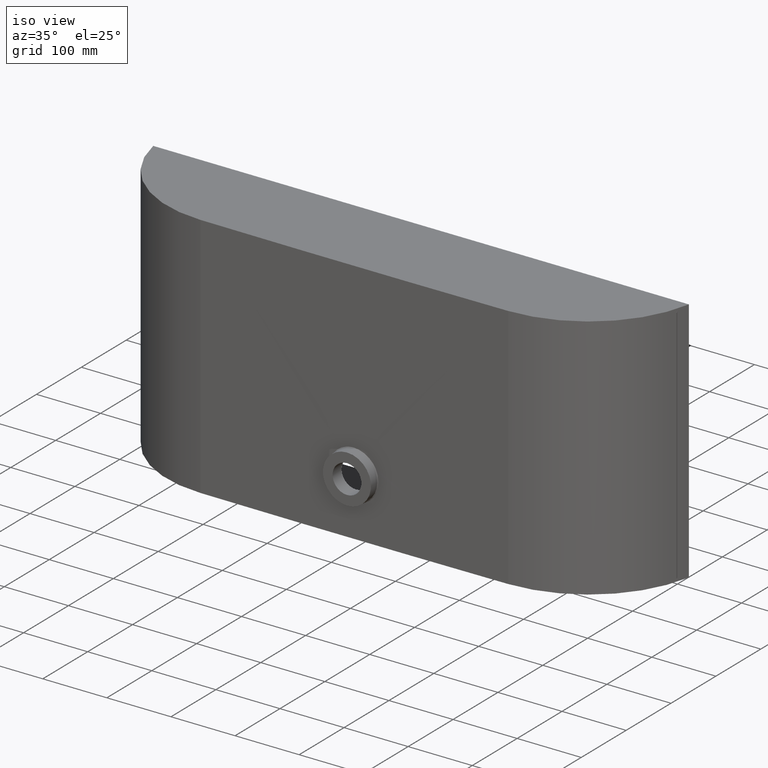
[diagram: clean part render]
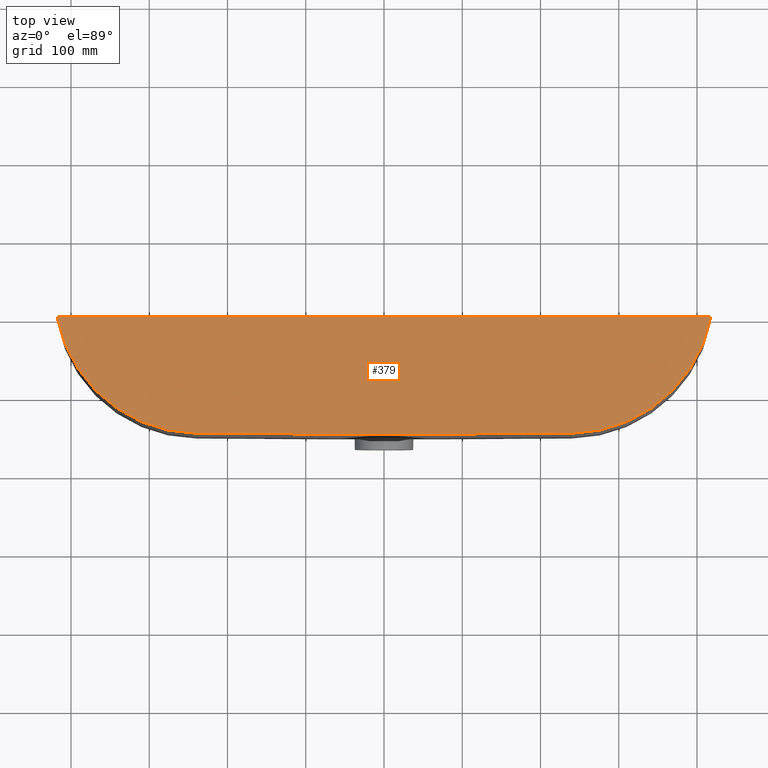
[diagram: tour spotlight — one face highlighted and labeled with its STEP entity id]
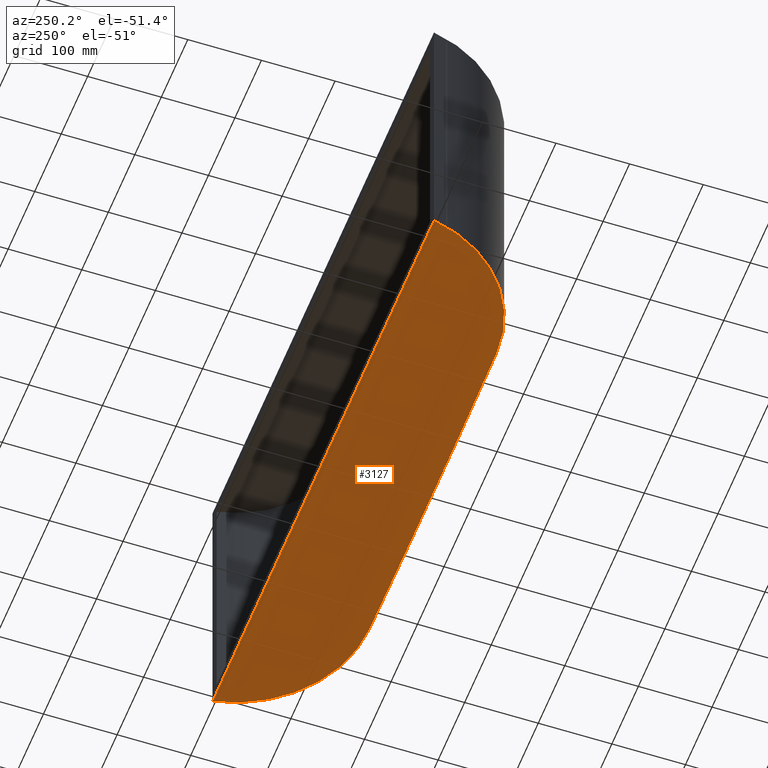
[diagram: tour spotlight — one face highlighted and labeled with its STEP entity id]
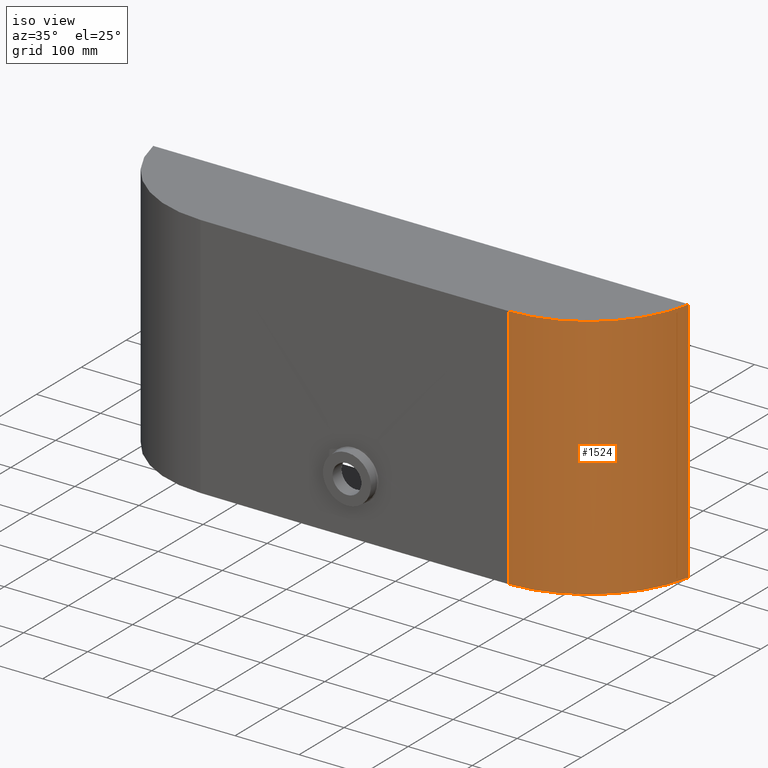
[diagram: tour spotlight — one face highlighted and labeled with its STEP entity id]
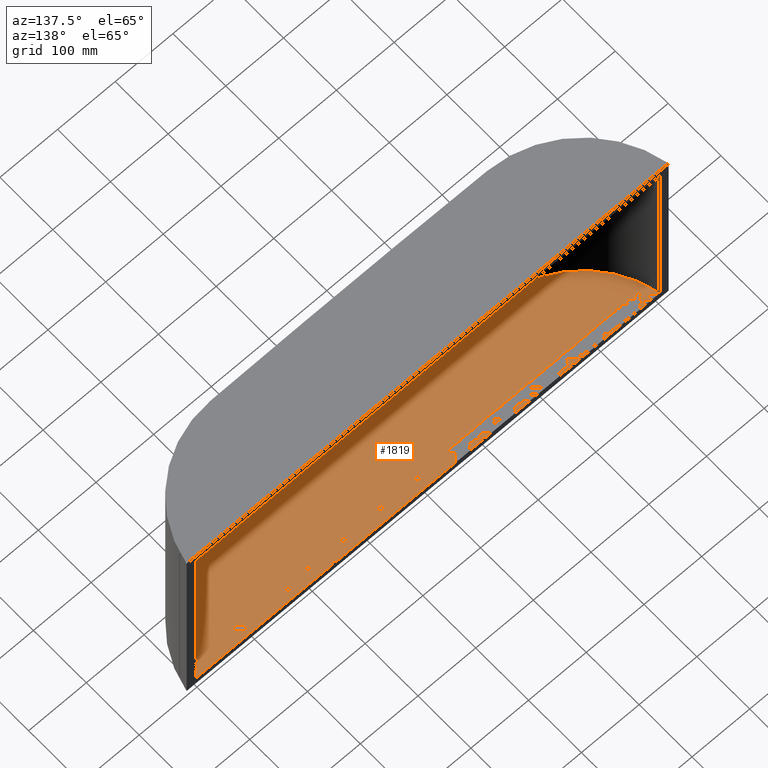
[diagram: tour spotlight — one face highlighted and labeled with its STEP entity id]
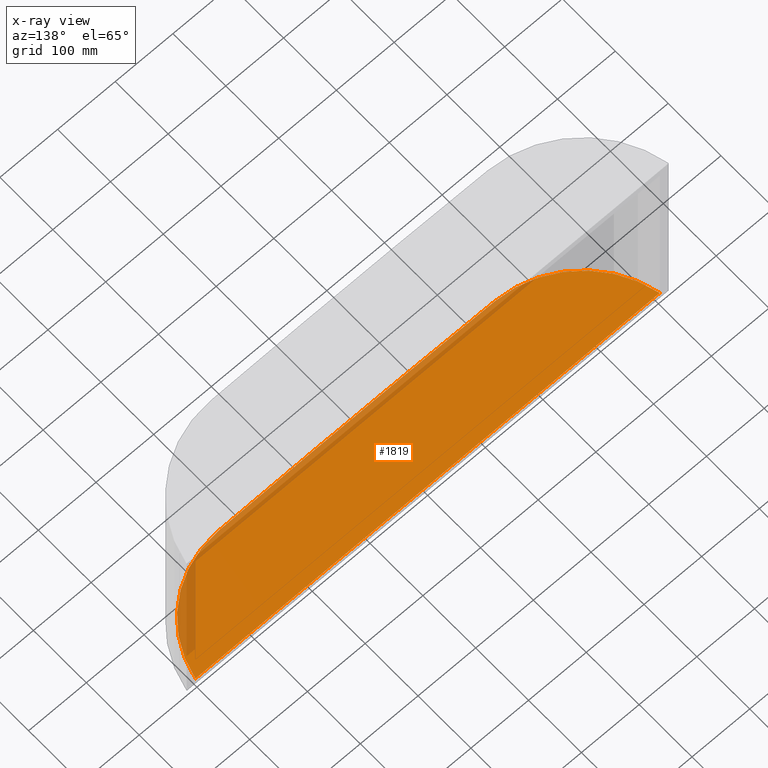
[diagram: x-ray of the same camera — body ghosted, this tour face saturated]
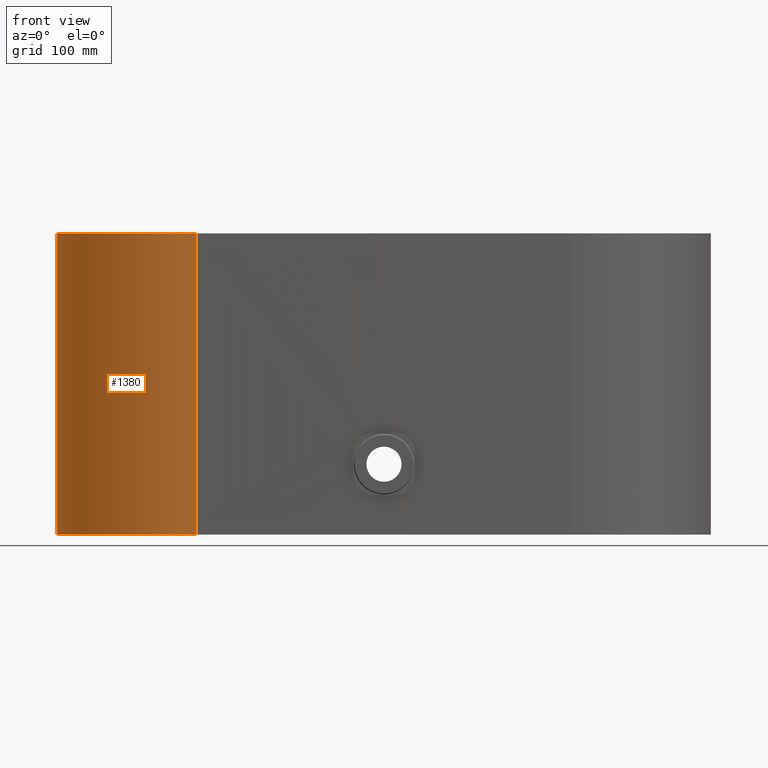
[diagram: tour spotlight — one face highlighted and labeled with its STEP entity id]
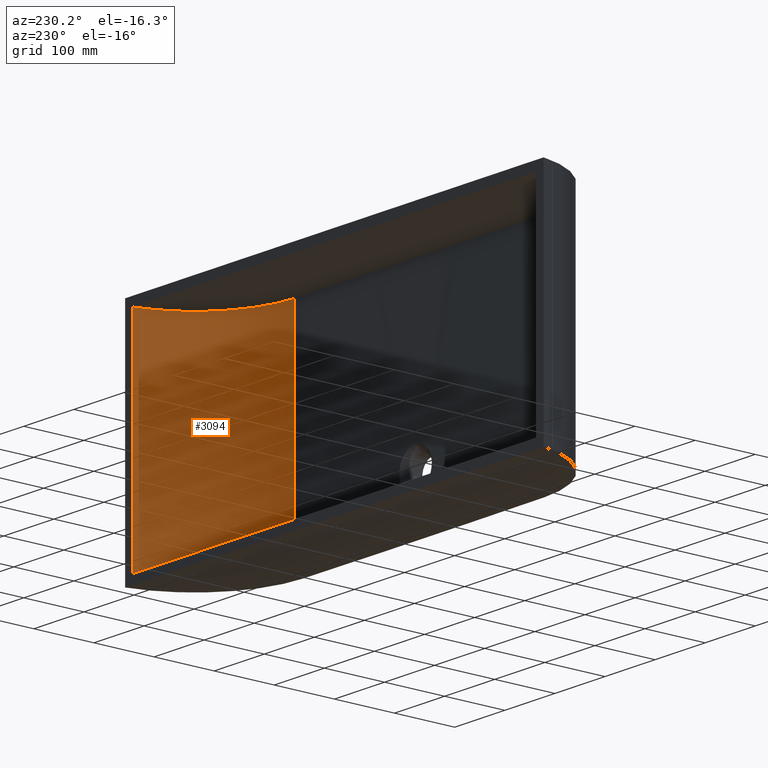
[diagram: tour spotlight — one face highlighted and labeled with its STEP entity id]
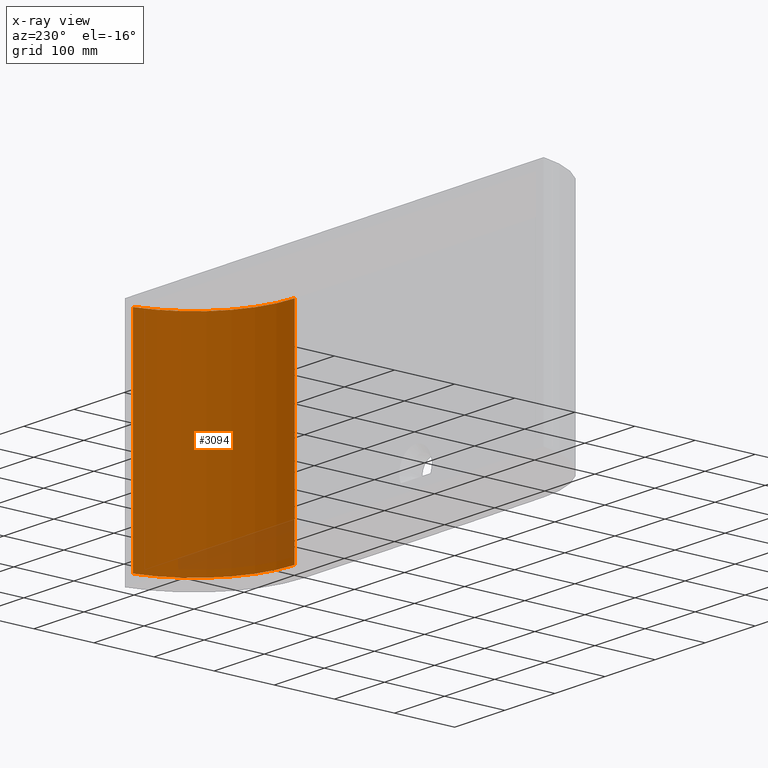
[diagram: x-ray of the same camera — body ghosted, this tour face saturated]
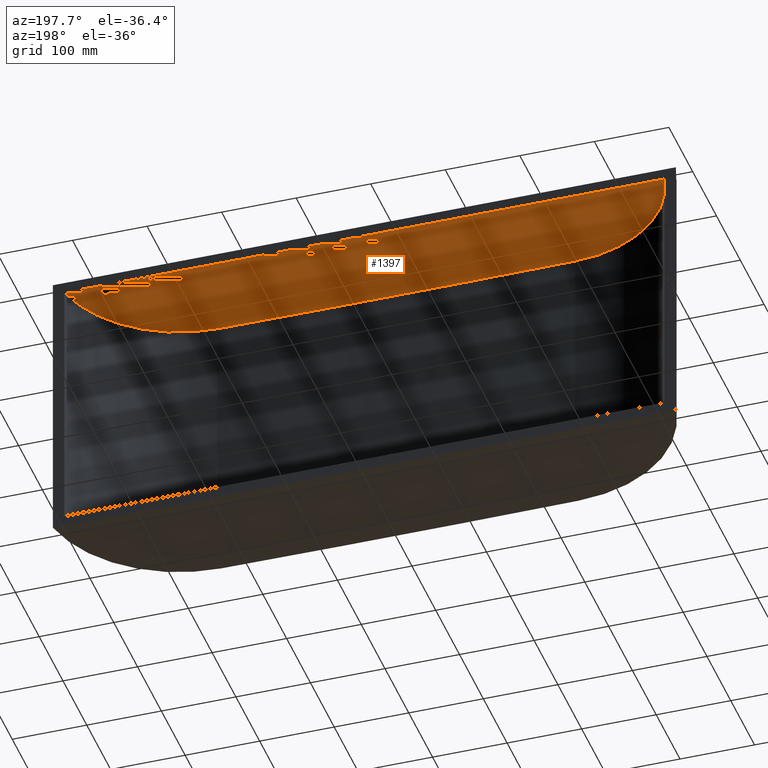
[diagram: tour spotlight — one face highlighted and labeled with its STEP entity id]
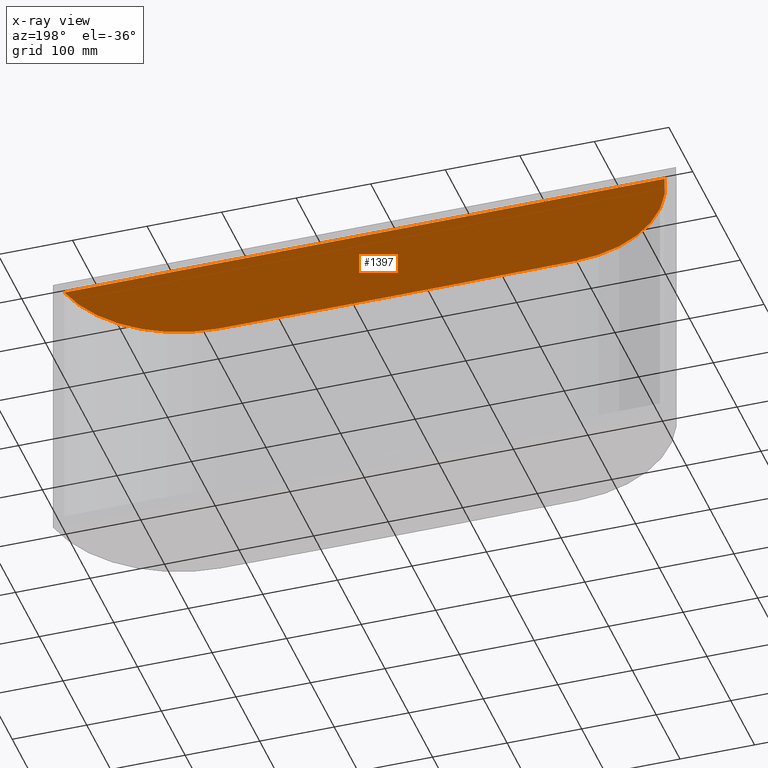
[diagram: x-ray of the same camera — body ghosted, this tour face saturated]
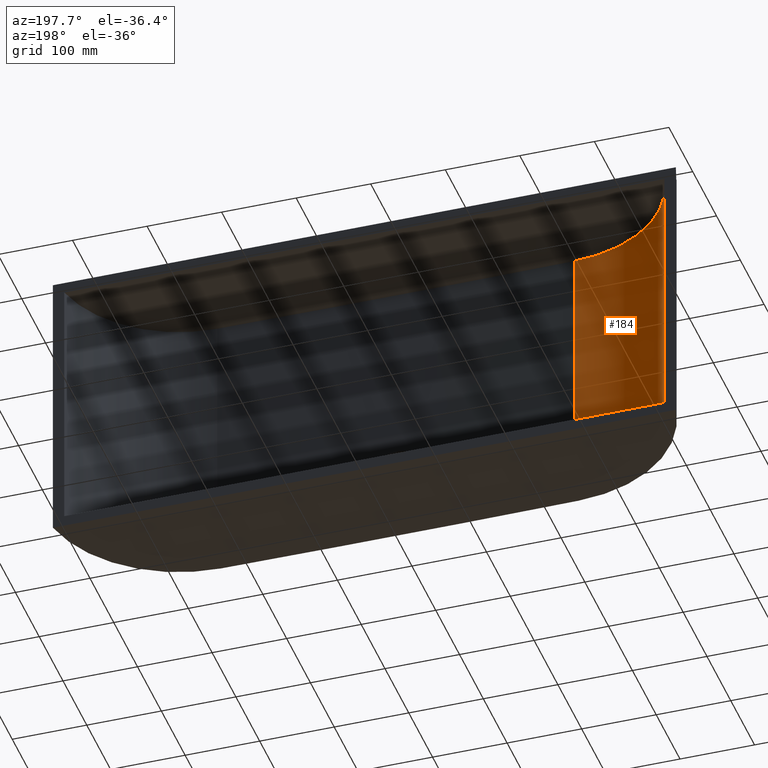
[diagram: tour spotlight — one face highlighted and labeled with its STEP entity id]
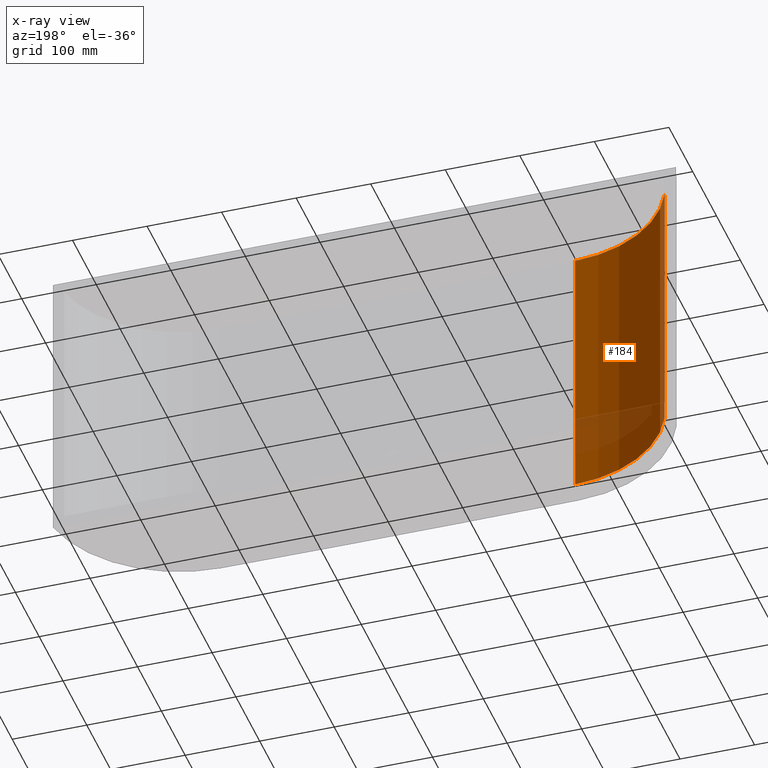
[diagram: x-ray of the same camera — body ghosted, this tour face saturated]
A machine part: a face-by-face anatomy tour. The part has 30 B-rep faces; the first image is the clean iso view, then the 8 largest visible faces are spotlighted one at a time (largest first), each with its STEP entity span.

Face 1 — top view, entity #379. In plain terms, the highlighted planar face has unit normal (0, 0, 1).
Definition (entity closure, byte-faithful):
#27 = LINE ( 'NONE', #1108, #2782 ) ;
#37 = DIRECTION ( 'NONE',  ( 0.0000000000000000000, 0.0000000000000000000, 1.000000000000000000 ) ) ;
#40 = EDGE_CURVE ( 'NONE', #2929, #260, #1393, .T. ) ;
#135 = VERTEX_POINT ( 'NONE', #2263 ) ;
#242 = AXIS2_PLACEMENT_3D ( 'NONE', #2932, #37, #285 ) ;
#253 = CIRCLE ( 'NONE', #1985, 23055.62499999943600 ) ;
#260 = VERTEX_POINT ( 'NONE', #1451 ) ;
#285 = DIRECTION ( 'NONE',  ( 1.000000000000000000, 0.0000000000000000000, 0.0000000000000000000 ) ) ;
#379 = ADVANCED_FACE ( 'NONE', ( #2138 ), #1620, .T. ) ;
#492 = AXIS2_PLACEMENT_3D ( 'NONE', #908, #2468, #561 ) ;
#561 = DIRECTION ( 'NONE',  ( 1.000000000000000000, 0.0000000000000000000, 0.0000000000000000000 ) ) ;
#799 = DIRECTION ( 'NONE',  ( 1.000000000000000000, 0.0000000000000000000, 0.0000000000000000000 ) ) ;
#908 = CARTESIAN_POINT ( 'NONE',  ( -238.2529469721367500, 33.96254106172236200, 295.0000000000000600 ) ) ;
#920 = EDGE_CURVE ( 'NONE', #1154, #135, #2953, .T. ) ;
#1011 = ORIENTED_EDGE ( 'NONE', *, *, #920, .T. ) ;
#1104 = CARTESIAN_POINT ( 'NONE',  ( -417.7905297708493900, -1.872549834113797300E-015, 295.0000000000000600 ) ) ;
#1107 = DIRECTION ( 'NONE',  ( -1.000000000000000000, -1.224646799147353200E-016, 0.0000000000000000000 ) ) ;
#1108 = CARTESIAN_POINT ( 'NONE',  ( -238.2529469721367500, 2.081668171172168500E-014, 295.0000000000000600 ) ) ;
#1114 = ORIENTED_EDGE ( 'NONE', *, *, #1257, .T. ) ;
#1154 = VERTEX_POINT ( 'NONE', #3133 ) ;
#1245 = ORIENTED_EDGE ( 'NONE', *, *, #2872, .T. ) ;
#1257 = EDGE_CURVE ( 'NONE', #260, #1154, #253, .T. ) ;
#1261 = DIRECTION ( 'NONE',  ( 0.0000000000000000000, 0.0000000000000000000, 1.000000000000000000 ) ) ;
#1263 = EDGE_LOOP ( 'NONE', ( #2048, #1114, #1011, #1245 ) ) ;
#1393 = CIRCLE ( 'NONE', #492, 182.7216402963091200 ) ;
#1451 = CARTESIAN_POINT ( 'NONE',  ( -240.1562457615723400, -148.7491862200585900, 295.0000000000000600 ) ) ;
#1620 = PLANE ( 'NONE',  #3042 ) ;
#1853 = CARTESIAN_POINT ( 'NONE',  ( -238.2529469721367500, 33.96254106172236200, 295.0000000000000600 ) ) ;
#1985 = AXIS2_PLACEMENT_3D ( 'NONE', #2311, #1261, #799 ) ;
#2048 = ORIENTED_EDGE ( 'NONE', *, *, #40, .T. ) ;
#2138 = FACE_OUTER_BOUND ( 'NONE', #1263, .T. ) ;
#2263 = CARTESIAN_POINT ( 'NONE',  ( 417.7905297708493900, 1.004566171654757300E-013, 295.0000000000000600 ) ) ;
#2311 = CARTESIAN_POINT ( 'NONE',  ( -2.793754109194857500E-012, 22905.62499999944000, 295.0000000000000600 ) ) ;
#2468 = DIRECTION ( 'NONE',  ( 0.0000000000000000000, 0.0000000000000000000, 1.000000000000000000 ) ) ;
#2774 = DIRECTION ( 'NONE',  ( 1.000000000000000000, 0.0000000000000000000, -0.0000000000000000000 ) ) ;
#2782 = VECTOR ( 'NONE', #1107, 1000.000000000000000 ) ;
#2872 = EDGE_CURVE ( 'NONE', #135, #2929, #27, .T. ) ;
#2929 = VERTEX_POINT ( 'NONE', #1104 ) ;
#2932 = CARTESIAN_POINT ( 'NONE',  ( 238.2529469721367500, 33.96254106172241900, 295.0000000000000600 ) ) ;
#2953 = CIRCLE ( 'NONE', #242, 182.7216402963090900 ) ;
#3042 = AXIS2_PLACEMENT_3D ( 'NONE', #1853, #3202, #2774 ) ;
#3133 = CARTESIAN_POINT ( 'NONE',  ( 240.1562457615603400, -148.7491862199910000, 295.0000000000000600 ) ) ;
#3202 = DIRECTION ( 'NONE',  ( 0.0000000000000000000, 0.0000000000000000000, 1.000000000000000000 ) ) ;

Face 2 — auxiliary view, entity #3127. In plain terms, the highlighted planar face has unit normal (0, 0, 1).
Definition (entity closure, byte-faithful):
#2 = DIRECTION ( 'NONE',  ( 0.0000000000000000000, 0.0000000000000000000, 1.000000000000000000 ) ) ;
#20 = VERTEX_POINT ( 'NONE', #3119 ) ;
#29 = EDGE_CURVE ( 'NONE', #20, #2840, #2372, .T. ) ;
#320 = EDGE_CURVE ( 'NONE', #2840, #1751, #506, .T. ) ;
#445 = AXIS2_PLACEMENT_3D ( 'NONE', #1023, #904, #931 ) ;
#487 = EDGE_CURVE ( 'NONE', #1751, #1307, #707, .T. ) ;
#506 = CIRCLE ( 'NONE', #1892, 182.7216402963091200 ) ;
#525 = DIRECTION ( 'NONE',  ( 1.000000000000000000, 0.0000000000000000000, 0.0000000000000000000 ) ) ;
#538 = CIRCLE ( 'NONE', #3168, 182.7216402963090900 ) ;
#673 = CARTESIAN_POINT ( 'NONE',  ( -2.793754109194857500E-012, 22905.62499999944000, -90.00000000000000000 ) ) ;
#707 = CIRCLE ( 'NONE', #746, 23055.62499999943600 ) ;
#742 = ORIENTED_EDGE ( 'NONE', *, *, #2787, .F. ) ;
#746 = AXIS2_PLACEMENT_3D ( 'NONE', #673, #977, #3064 ) ;
#904 = DIRECTION ( 'NONE',  ( 0.0000000000000000000, 0.0000000000000000000, 1.000000000000000000 ) ) ;
#931 = DIRECTION ( 'NONE',  ( 1.000000000000000000, 0.0000000000000000000, -0.0000000000000000000 ) ) ;
#977 = DIRECTION ( 'NONE',  ( 0.0000000000000000000, 0.0000000000000000000, 1.000000000000000000 ) ) ;
#1023 = CARTESIAN_POINT ( 'NONE',  ( -238.2529469721367500, 33.96254106172236200, -90.00000000000000000 ) ) ;
#1035 = PLANE ( 'NONE',  #445 ) ;
#1305 = CARTESIAN_POINT ( 'NONE',  ( -417.7905297708493900, -1.872549834113797300E-015, -90.00000000000000000 ) ) ;
#1307 = VERTEX_POINT ( 'NONE', #3165 ) ;
#1309 = DIRECTION ( 'NONE',  ( 1.000000000000000000, 0.0000000000000000000, 0.0000000000000000000 ) ) ;
#1313 = DIRECTION ( 'NONE',  ( 0.0000000000000000000, 0.0000000000000000000, 1.000000000000000000 ) ) ;
#1314 = CARTESIAN_POINT ( 'NONE',  ( 238.2529469721367500, 33.96254106172241900, -90.00000000000000000 ) ) ;
#1359 = VECTOR ( 'NONE', #2342, 1000.000000000000000 ) ;
#1385 = ORIENTED_EDGE ( 'NONE', *, *, #29, .F. ) ;
#1711 = CARTESIAN_POINT ( 'NONE',  ( -240.1562457615723400, -148.7491862200585900, -90.00000000000000000 ) ) ;
#1751 = VERTEX_POINT ( 'NONE', #1711 ) ;
#1890 = EDGE_LOOP ( 'NONE', ( #2049, #1385, #742, #2719 ) ) ;
#1892 = AXIS2_PLACEMENT_3D ( 'NONE', #2996, #2, #525 ) ;
#2049 = ORIENTED_EDGE ( 'NONE', *, *, #320, .F. ) ;
#2314 = FACE_OUTER_BOUND ( 'NONE', #1890, .T. ) ;
#2342 = DIRECTION ( 'NONE',  ( -1.000000000000000000, -1.224646799147353200E-016, 0.0000000000000000000 ) ) ;
#2372 = LINE ( 'NONE', #3224, #1359 ) ;
#2719 = ORIENTED_EDGE ( 'NONE', *, *, #487, .F. ) ;
#2787 = EDGE_CURVE ( 'NONE', #1307, #20, #538, .T. ) ;
#2840 = VERTEX_POINT ( 'NONE', #1305 ) ;
#2996 = CARTESIAN_POINT ( 'NONE',  ( -238.2529469721367500, 33.96254106172236200, -90.00000000000000000 ) ) ;
#3064 = DIRECTION ( 'NONE',  ( 1.000000000000000000, 0.0000000000000000000, 0.0000000000000000000 ) ) ;
#3119 = CARTESIAN_POINT ( 'NONE',  ( 417.7905297708493900, 1.004566171654757300E-013, -90.00000000000000000 ) ) ;
#3127 = ADVANCED_FACE ( 'NONE', ( #2314 ), #1035, .F. ) ;
#3165 = CARTESIAN_POINT ( 'NONE',  ( 240.1562457615603400, -148.7491862199910000, -90.00000000000000000 ) ) ;
#3168 = AXIS2_PLACEMENT_3D ( 'NONE', #1314, #1313, #1309 ) ;
#3224 = CARTESIAN_POINT ( 'NONE',  ( -238.2529469721367500, 2.081668171172168500E-014, -90.00000000000000000 ) ) ;

Face 3 — iso view, entity #1524. In plain terms, the highlighted cylindrical surface (partial cylindrical patch) has radius 182.722 mm, axis along (0, 0, 1).
Definition (entity closure, byte-faithful):
#20 = VERTEX_POINT ( 'NONE', #3119 ) ;
#37 = DIRECTION ( 'NONE',  ( 0.0000000000000000000, 0.0000000000000000000, 1.000000000000000000 ) ) ;
#101 = DIRECTION ( 'NONE',  ( 0.0000000000000000000, 0.0000000000000000000, 1.000000000000000000 ) ) ;
#135 = VERTEX_POINT ( 'NONE', #2263 ) ;
#194 = EDGE_CURVE ( 'NONE', #20, #135, #2393, .T. ) ;
#242 = AXIS2_PLACEMENT_3D ( 'NONE', #2932, #37, #285 ) ;
#285 = DIRECTION ( 'NONE',  ( 1.000000000000000000, 0.0000000000000000000, 0.0000000000000000000 ) ) ;
#378 = DIRECTION ( 'NONE',  ( 1.000000000000000000, 0.0000000000000000000, 0.0000000000000000000 ) ) ;
#512 = EDGE_LOOP ( 'NONE', ( #2679, #1288, #590, #2338 ) ) ;
#538 = CIRCLE ( 'NONE', #3168, 182.7216402963090900 ) ;
#590 = ORIENTED_EDGE ( 'NONE', *, *, #1141, .F. ) ;
#638 = VECTOR ( 'NONE', #101, 1000.000000000000000 ) ;
#713 = AXIS2_PLACEMENT_3D ( 'NONE', #1703, #1371, #378 ) ;
#788 = CARTESIAN_POINT ( 'NONE',  ( 240.1562457615603400, -148.7491862199910000, -75.00000000000000000 ) ) ;
#920 = EDGE_CURVE ( 'NONE', #1154, #135, #2953, .T. ) ;
#944 = FACE_OUTER_BOUND ( 'NONE', #512, .T. ) ;
#1141 = EDGE_CURVE ( 'NONE', #1307, #1154, #1644, .T. ) ;
#1154 = VERTEX_POINT ( 'NONE', #3133 ) ;
#1288 = ORIENTED_EDGE ( 'NONE', *, *, #920, .F. ) ;
#1307 = VERTEX_POINT ( 'NONE', #3165 ) ;
#1309 = DIRECTION ( 'NONE',  ( 1.000000000000000000, 0.0000000000000000000, 0.0000000000000000000 ) ) ;
#1313 = DIRECTION ( 'NONE',  ( 0.0000000000000000000, 0.0000000000000000000, 1.000000000000000000 ) ) ;
#1314 = CARTESIAN_POINT ( 'NONE',  ( 238.2529469721367500, 33.96254106172241900, -90.00000000000000000 ) ) ;
#1371 = DIRECTION ( 'NONE',  ( 0.0000000000000000000, 0.0000000000000000000, 1.000000000000000000 ) ) ;
#1524 = ADVANCED_FACE ( 'NONE', ( #944 ), #2785, .T. ) ;
#1644 = LINE ( 'NONE', #788, #638 ) ;
#1703 = CARTESIAN_POINT ( 'NONE',  ( 238.2529469721367500, 33.96254106172241900, -75.00000000000000000 ) ) ;
#1770 = VECTOR ( 'NONE', #3233, 1000.000000000000000 ) ;
#2263 = CARTESIAN_POINT ( 'NONE',  ( 417.7905297708493900, 1.004566171654757300E-013, 295.0000000000000600 ) ) ;
#2338 = ORIENTED_EDGE ( 'NONE', *, *, #2787, .T. ) ;
#2393 = LINE ( 'NONE', #3246, #1770 ) ;
#2679 = ORIENTED_EDGE ( 'NONE', *, *, #194, .T. ) ;
#2785 = CYLINDRICAL_SURFACE ( 'NONE', #713, 182.7216402963090900 ) ;
#2787 = EDGE_CURVE ( 'NONE', #1307, #20, #538, .T. ) ;
#2932 = CARTESIAN_POINT ( 'NONE',  ( 238.2529469721367500, 33.96254106172241900, 295.0000000000000600 ) ) ;
#2953 = CIRCLE ( 'NONE', #242, 182.7216402963090900 ) ;
#3119 = CARTESIAN_POINT ( 'NONE',  ( 417.7905297708493900, 1.004566171654757300E-013, -90.00000000000000000 ) ) ;
#3133 = CARTESIAN_POINT ( 'NONE',  ( 240.1562457615603400, -148.7491862199910000, 295.0000000000000600 ) ) ;
#3165 = CARTESIAN_POINT ( 'NONE',  ( 240.1562457615603400, -148.7491862199910000, -90.00000000000000000 ) ) ;
#3168 = AXIS2_PLACEMENT_3D ( 'NONE', #1314, #1313, #1309 ) ;
#3233 = DIRECTION ( 'NONE',  ( 0.0000000000000000000, 0.0000000000000000000, 1.000000000000000000 ) ) ;
#3246 = CARTESIAN_POINT ( 'NONE',  ( 417.7905297708493900, 1.004566171654757300E-013, -90.00000000000000000 ) ) ;

Face 4 — auxiliary view, entity #1819. An x-ray twin of the same camera follows (body ghosted, this face saturated) — the face is partly hidden behind the body. In plain terms, the highlighted planar face has unit normal (0, 0, 1).
Definition (entity closure, byte-faithful):
#84 = LINE ( 'NONE', #2781, #664 ) ;
#96 = EDGE_LOOP ( 'NONE', ( #622, #2847, #980, #2882 ) ) ;
#148 = AXIS2_PLACEMENT_3D ( 'NONE', #1721, #3069, #533 ) ;
#178 = AXIS2_PLACEMENT_3D ( 'NONE', #1301, #1022, #1153 ) ;
#278 = PLANE ( 'NONE',  #148 ) ;
#527 = VERTEX_POINT ( 'NONE', #2531 ) ;
#533 = DIRECTION ( 'NONE',  ( 1.000000000000000000, 0.0000000000000000000, -0.0000000000000000000 ) ) ;
#622 = ORIENTED_EDGE ( 'NONE', *, *, #2317, .T. ) ;
#664 = VECTOR ( 'NONE', #1460, 1000.000000000000000 ) ;
#822 = CIRCLE ( 'NONE', #1847, 167.7216402963090900 ) ;
#826 = VERTEX_POINT ( 'NONE', #2508 ) ;
#933 = EDGE_CURVE ( 'NONE', #1458, #3179, #981, .T. ) ;
#980 = ORIENTED_EDGE ( 'NONE', *, *, #933, .T. ) ;
#981 = CIRCLE ( 'NONE', #3250, 167.7216402963090900 ) ;
#1012 = CARTESIAN_POINT ( 'NONE',  ( 402.5000000000000000, 9.858406733136193300E-014, -75.00000000000000000 ) ) ;
#1022 = DIRECTION ( 'NONE',  ( 0.0000000000000000000, 0.0000000000000000000, 1.000000000000000000 ) ) ;
#1153 = DIRECTION ( 'NONE',  ( 1.000000000000000000, 0.0000000000000000000, 0.0000000000000000000 ) ) ;
#1198 = CIRCLE ( 'NONE', #178, 23040.62499999943600 ) ;
#1210 = DIRECTION ( 'NONE',  ( -1.000000000000000000, 0.0000000000000000000, 0.0000000000000000000 ) ) ;
#1264 = DIRECTION ( 'NONE',  ( 0.0000000000000000000, 0.0000000000000000000, 1.000000000000000000 ) ) ;
#1277 = DIRECTION ( 'NONE',  ( 1.000000000000000000, 0.0000000000000000000, 0.0000000000000000000 ) ) ;
#1280 = CARTESIAN_POINT ( 'NONE',  ( -238.2529469721367500, 33.96254106172236200, -75.00000000000000000 ) ) ;
#1301 = CARTESIAN_POINT ( 'NONE',  ( -2.793754109194857500E-012, 22905.62499999944000, -75.00000000000000000 ) ) ;
#1458 = VERTEX_POINT ( 'NONE', #1889 ) ;
#1460 = DIRECTION ( 'NONE',  ( -1.000000000000000000, -1.224646799147353200E-016, -0.0000000000000000000 ) ) ;
#1476 = DIRECTION ( 'NONE',  ( 0.0000000000000000000, 0.0000000000000000000, 1.000000000000000000 ) ) ;
#1721 = CARTESIAN_POINT ( 'NONE',  ( -238.2529469721367500, 33.96254106172236200, -75.00000000000000000 ) ) ;
#1780 = EDGE_CURVE ( 'NONE', #3179, #527, #84, .T. ) ;
#1819 = ADVANCED_FACE ( 'NONE', ( #3081 ), #278, .T. ) ;
#1847 = AXIS2_PLACEMENT_3D ( 'NONE', #1280, #1264, #1277 ) ;
#1889 = CARTESIAN_POINT ( 'NONE',  ( 240.0000000000007100, -133.7500000000667600, -75.00000000000000000 ) ) ;
#2317 = EDGE_CURVE ( 'NONE', #527, #826, #822, .T. ) ;
#2508 = CARTESIAN_POINT ( 'NONE',  ( -240.0000000000119700, -133.7499999999991500, -75.00000000000000000 ) ) ;
#2519 = CARTESIAN_POINT ( 'NONE',  ( 238.2529469721367500, 33.96254106172241900, -75.00000000000000000 ) ) ;
#2531 = CARTESIAN_POINT ( 'NONE',  ( -402.5000000000000000, 0.0000000000000000000, -75.00000000000000000 ) ) ;
#2781 = CARTESIAN_POINT ( 'NONE',  ( -402.5000000000000000, 0.0000000000000000000, -75.00000000000000000 ) ) ;
#2804 = EDGE_CURVE ( 'NONE', #826, #1458, #1198, .T. ) ;
#2847 = ORIENTED_EDGE ( 'NONE', *, *, #2804, .T. ) ;
#2882 = ORIENTED_EDGE ( 'NONE', *, *, #1780, .T. ) ;
#3069 = DIRECTION ( 'NONE',  ( 0.0000000000000000000, 0.0000000000000000000, 1.000000000000000000 ) ) ;
#3081 = FACE_OUTER_BOUND ( 'NONE', #96, .T. ) ;
#3179 = VERTEX_POINT ( 'NONE', #1012 ) ;
#3250 = AXIS2_PLACEMENT_3D ( 'NONE', #2519, #1476, #1210 ) ;

Face 5 — front view, entity #1380. In plain terms, the highlighted cylindrical surface (partial cylindrical patch) has radius 182.722 mm, axis along (0, 0, 1).
Definition (entity closure, byte-faithful):
#2 = DIRECTION ( 'NONE',  ( 0.0000000000000000000, 0.0000000000000000000, 1.000000000000000000 ) ) ;
#40 = EDGE_CURVE ( 'NONE', #2929, #260, #1393, .T. ) ;
#260 = VERTEX_POINT ( 'NONE', #1451 ) ;
#320 = EDGE_CURVE ( 'NONE', #2840, #1751, #506, .T. ) ;
#492 = AXIS2_PLACEMENT_3D ( 'NONE', #908, #2468, #561 ) ;
#506 = CIRCLE ( 'NONE', #1892, 182.7216402963091200 ) ;
#521 = ORIENTED_EDGE ( 'NONE', *, *, #633, .F. ) ;
#523 = VECTOR ( 'NONE', #3256, 1000.000000000000000 ) ;
#525 = DIRECTION ( 'NONE',  ( 1.000000000000000000, 0.0000000000000000000, 0.0000000000000000000 ) ) ;
#561 = DIRECTION ( 'NONE',  ( 1.000000000000000000, 0.0000000000000000000, 0.0000000000000000000 ) ) ;
#601 = ORIENTED_EDGE ( 'NONE', *, *, #40, .F. ) ;
#604 = DIRECTION ( 'NONE',  ( 0.0000000000000000000, 0.0000000000000000000, 1.000000000000000000 ) ) ;
#633 = EDGE_CURVE ( 'NONE', #2840, #2929, #1289, .T. ) ;
#887 = CYLINDRICAL_SURFACE ( 'NONE', #2490, 182.7216402963091200 ) ;
#908 = CARTESIAN_POINT ( 'NONE',  ( -238.2529469721367500, 33.96254106172236200, 295.0000000000000600 ) ) ;
#930 = LINE ( 'NONE', #1924, #2873 ) ;
#1104 = CARTESIAN_POINT ( 'NONE',  ( -417.7905297708493900, -1.872549834113797300E-015, 295.0000000000000600 ) ) ;
#1149 = DIRECTION ( 'NONE',  ( 0.0000000000000000000, 0.0000000000000000000, 1.000000000000000000 ) ) ;
#1172 = ORIENTED_EDGE ( 'NONE', *, *, #2283, .T. ) ;
#1289 = LINE ( 'NONE', #2732, #523 ) ;
#1305 = CARTESIAN_POINT ( 'NONE',  ( -417.7905297708493900, -1.872549834113797300E-015, -90.00000000000000000 ) ) ;
#1380 = ADVANCED_FACE ( 'NONE', ( #1876 ), #887, .T. ) ;
#1393 = CIRCLE ( 'NONE', #492, 182.7216402963091200 ) ;
#1451 = CARTESIAN_POINT ( 'NONE',  ( -240.1562457615723400, -148.7491862200585900, 295.0000000000000600 ) ) ;
#1711 = CARTESIAN_POINT ( 'NONE',  ( -240.1562457615723400, -148.7491862200585900, -90.00000000000000000 ) ) ;
#1751 = VERTEX_POINT ( 'NONE', #1711 ) ;
#1876 = FACE_OUTER_BOUND ( 'NONE', #2757, .T. ) ;
#1892 = AXIS2_PLACEMENT_3D ( 'NONE', #2996, #2, #525 ) ;
#1924 = CARTESIAN_POINT ( 'NONE',  ( -240.1562457615723400, -148.7491862200585900, -75.00000000000000000 ) ) ;
#2283 = EDGE_CURVE ( 'NONE', #1751, #260, #930, .T. ) ;
#2347 = DIRECTION ( 'NONE',  ( 1.000000000000000000, 0.0000000000000000000, 0.0000000000000000000 ) ) ;
#2468 = DIRECTION ( 'NONE',  ( 0.0000000000000000000, 0.0000000000000000000, 1.000000000000000000 ) ) ;
#2490 = AXIS2_PLACEMENT_3D ( 'NONE', #3154, #604, #2347 ) ;
#2710 = ORIENTED_EDGE ( 'NONE', *, *, #320, .T. ) ;
#2732 = CARTESIAN_POINT ( 'NONE',  ( -417.7905297708493900, -1.872549834113797300E-015, -90.00000000000000000 ) ) ;
#2757 = EDGE_LOOP ( 'NONE', ( #1172, #601, #521, #2710 ) ) ;
#2840 = VERTEX_POINT ( 'NONE', #1305 ) ;
#2873 = VECTOR ( 'NONE', #1149, 1000.000000000000000 ) ;
#2929 = VERTEX_POINT ( 'NONE', #1104 ) ;
#2996 = CARTESIAN_POINT ( 'NONE',  ( -238.2529469721367500, 33.96254106172236200, -90.00000000000000000 ) ) ;
#3154 = CARTESIAN_POINT ( 'NONE',  ( -238.2529469721367500, 33.96254106172236200, -75.00000000000000000 ) ) ;
#3256 = DIRECTION ( 'NONE',  ( 0.0000000000000000000, 0.0000000000000000000, 1.000000000000000000 ) ) ;

Face 6 — auxiliary view, entity #3094. An x-ray twin of the same camera follows (body ghosted, this face saturated) — the face is partly hidden behind the body. In plain terms, the highlighted cylindrical surface (partial cylindrical patch) has radius 167.722 mm, axis along (0, 0, 1).
Definition (entity closure, byte-faithful):
#70 = VECTOR ( 'NONE', #1019, 1000.000000000000000 ) ;
#181 = LINE ( 'NONE', #1015, #70 ) ;
#190 = VERTEX_POINT ( 'NONE', #1934 ) ;
#203 = AXIS2_PLACEMENT_3D ( 'NONE', #1052, #1090, #1047 ) ;
#366 = VERTEX_POINT ( 'NONE', #1120 ) ;
#393 = ORIENTED_EDGE ( 'NONE', *, *, #3170, .F. ) ;
#495 = ORIENTED_EDGE ( 'NONE', *, *, #933, .F. ) ;
#860 = CARTESIAN_POINT ( 'NONE',  ( 238.2529469721367500, 33.96254106172241900, 280.0000000000000000 ) ) ;
#872 = DIRECTION ( 'NONE',  ( 0.0000000000000000000, 0.0000000000000000000, 1.000000000000000000 ) ) ;
#893 = DIRECTION ( 'NONE',  ( -1.000000000000000000, 0.0000000000000000000, 0.0000000000000000000 ) ) ;
#933 = EDGE_CURVE ( 'NONE', #1458, #3179, #981, .T. ) ;
#969 = ORIENTED_EDGE ( 'NONE', *, *, #2125, .T. ) ;
#981 = CIRCLE ( 'NONE', #3250, 167.7216402963090900 ) ;
#996 = CYLINDRICAL_SURFACE ( 'NONE', #203, 167.7216402963090600 ) ;
#1012 = CARTESIAN_POINT ( 'NONE',  ( 402.5000000000000000, 9.858406733136193300E-014, -75.00000000000000000 ) ) ;
#1015 = CARTESIAN_POINT ( 'NONE',  ( 402.5000000000000000, 9.858406733136193300E-014, -75.00000000000000000 ) ) ;
#1019 = DIRECTION ( 'NONE',  ( 0.0000000000000000000, 0.0000000000000000000, 1.000000000000000000 ) ) ;
#1047 = DIRECTION ( 'NONE',  ( 1.000000000000000000, 0.0000000000000000000, 0.0000000000000000000 ) ) ;
#1052 = CARTESIAN_POINT ( 'NONE',  ( 238.2529469721367500, 33.96254106172241900, -75.00000000000000000 ) ) ;
#1090 = DIRECTION ( 'NONE',  ( 0.0000000000000000000, 0.0000000000000000000, 1.000000000000000000 ) ) ;
#1120 = CARTESIAN_POINT ( 'NONE',  ( 240.0000000000007100, -133.7500000000667600, 280.0000000000000000 ) ) ;
#1206 = ORIENTED_EDGE ( 'NONE', *, *, #3105, .T. ) ;
#1210 = DIRECTION ( 'NONE',  ( -1.000000000000000000, 0.0000000000000000000, 0.0000000000000000000 ) ) ;
#1362 = AXIS2_PLACEMENT_3D ( 'NONE', #860, #872, #893 ) ;
#1458 = VERTEX_POINT ( 'NONE', #1889 ) ;
#1476 = DIRECTION ( 'NONE',  ( 0.0000000000000000000, 0.0000000000000000000, 1.000000000000000000 ) ) ;
#1538 = FACE_OUTER_BOUND ( 'NONE', #1923, .T. ) ;
#1889 = CARTESIAN_POINT ( 'NONE',  ( 240.0000000000007100, -133.7500000000667600, -75.00000000000000000 ) ) ;
#1923 = EDGE_LOOP ( 'NONE', ( #393, #495, #969, #1206 ) ) ;
#1934 = CARTESIAN_POINT ( 'NONE',  ( 402.5000000000000000, 9.858406733136193300E-014, 280.0000000000000000 ) ) ;
#1979 = DIRECTION ( 'NONE',  ( 0.0000000000000000000, 0.0000000000000000000, 1.000000000000000000 ) ) ;
#2014 = CARTESIAN_POINT ( 'NONE',  ( 240.0000000000007100, -133.7500000000667600, -75.00000000000000000 ) ) ;
#2125 = EDGE_CURVE ( 'NONE', #1458, #366, #2196, .T. ) ;
#2196 = LINE ( 'NONE', #2014, #2572 ) ;
#2297 = CIRCLE ( 'NONE', #1362, 167.7216402963090900 ) ;
#2519 = CARTESIAN_POINT ( 'NONE',  ( 238.2529469721367500, 33.96254106172241900, -75.00000000000000000 ) ) ;
#2572 = VECTOR ( 'NONE', #1979, 1000.000000000000000 ) ;
#3094 = ADVANCED_FACE ( 'NONE', ( #1538 ), #996, .F. ) ;
#3105 = EDGE_CURVE ( 'NONE', #366, #190, #2297, .T. ) ;
#3170 = EDGE_CURVE ( 'NONE', #3179, #190, #181, .T. ) ;
#3179 = VERTEX_POINT ( 'NONE', #1012 ) ;
#3250 = AXIS2_PLACEMENT_3D ( 'NONE', #2519, #1476, #1210 ) ;

Face 7 — auxiliary view, entity #1397. An x-ray twin of the same camera follows (body ghosted, this face saturated) — the face is partly hidden behind the body. In plain terms, the highlighted planar face has unit normal (0, 0, 1).
Definition (entity closure, byte-faithful):
#117 = DIRECTION ( 'NONE',  ( 1.000000000000000000, 0.0000000000000000000, -0.0000000000000000000 ) ) ;
#145 = EDGE_CURVE ( 'NONE', #190, #1932, #1499, .T. ) ;
#190 = VERTEX_POINT ( 'NONE', #1934 ) ;
#212 = CIRCLE ( 'NONE', #2992, 167.7216402963090900 ) ;
#270 = DIRECTION ( 'NONE',  ( 1.000000000000000000, 0.0000000000000000000, 0.0000000000000000000 ) ) ;
#366 = VERTEX_POINT ( 'NONE', #1120 ) ;
#524 = CARTESIAN_POINT ( 'NONE',  ( -238.2529469721367500, 33.96254106172236200, 280.0000000000000000 ) ) ;
#617 = DIRECTION ( 'NONE',  ( -1.000000000000000000, -1.224646799147353200E-016, -0.0000000000000000000 ) ) ;
#623 = AXIS2_PLACEMENT_3D ( 'NONE', #1042, #1039, #1038 ) ;
#650 = CARTESIAN_POINT ( 'NONE',  ( -402.5000000000000000, 0.0000000000000000000, 280.0000000000000000 ) ) ;
#659 = ORIENTED_EDGE ( 'NONE', *, *, #145, .F. ) ;
#732 = EDGE_LOOP ( 'NONE', ( #1310, #659, #2063, #2140 ) ) ;
#860 = CARTESIAN_POINT ( 'NONE',  ( 238.2529469721367500, 33.96254106172241900, 280.0000000000000000 ) ) ;
#872 = DIRECTION ( 'NONE',  ( 0.0000000000000000000, 0.0000000000000000000, 1.000000000000000000 ) ) ;
#893 = DIRECTION ( 'NONE',  ( -1.000000000000000000, 0.0000000000000000000, 0.0000000000000000000 ) ) ;
#1038 = DIRECTION ( 'NONE',  ( 1.000000000000000000, 0.0000000000000000000, 0.0000000000000000000 ) ) ;
#1039 = DIRECTION ( 'NONE',  ( 0.0000000000000000000, 0.0000000000000000000, 1.000000000000000000 ) ) ;
#1042 = CARTESIAN_POINT ( 'NONE',  ( -2.793754109194857500E-012, 22905.62499999944000, 280.0000000000000000 ) ) ;
#1043 = VERTEX_POINT ( 'NONE', #1728 ) ;
#1070 = VECTOR ( 'NONE', #617, 1000.000000000000000 ) ;
#1120 = CARTESIAN_POINT ( 'NONE',  ( 240.0000000000007100, -133.7500000000667600, 280.0000000000000000 ) ) ;
#1292 = AXIS2_PLACEMENT_3D ( 'NONE', #2897, #1297, #117 ) ;
#1297 = DIRECTION ( 'NONE',  ( 0.0000000000000000000, 0.0000000000000000000, 1.000000000000000000 ) ) ;
#1310 = ORIENTED_EDGE ( 'NONE', *, *, #1604, .F. ) ;
#1362 = AXIS2_PLACEMENT_3D ( 'NONE', #860, #872, #893 ) ;
#1397 = ADVANCED_FACE ( 'NONE', ( #2436 ), #1822, .F. ) ;
#1499 = LINE ( 'NONE', #650, #1070 ) ;
#1604 = EDGE_CURVE ( 'NONE', #1932, #1043, #212, .T. ) ;
#1728 = CARTESIAN_POINT ( 'NONE',  ( -240.0000000000119700, -133.7499999999991500, 280.0000000000000000 ) ) ;
#1822 = PLANE ( 'NONE',  #1292 ) ;
#1932 = VERTEX_POINT ( 'NONE', #2405 ) ;
#1934 = CARTESIAN_POINT ( 'NONE',  ( 402.5000000000000000, 9.858406733136193300E-014, 280.0000000000000000 ) ) ;
#1971 = DIRECTION ( 'NONE',  ( 0.0000000000000000000, 0.0000000000000000000, 1.000000000000000000 ) ) ;
#2063 = ORIENTED_EDGE ( 'NONE', *, *, #3105, .F. ) ;
#2140 = ORIENTED_EDGE ( 'NONE', *, *, #3058, .F. ) ;
#2191 = CIRCLE ( 'NONE', #623, 23040.62499999943600 ) ;
#2297 = CIRCLE ( 'NONE', #1362, 167.7216402963090900 ) ;
#2405 = CARTESIAN_POINT ( 'NONE',  ( -402.5000000000000000, 0.0000000000000000000, 280.0000000000000000 ) ) ;
#2436 = FACE_OUTER_BOUND ( 'NONE', #732, .T. ) ;
#2897 = CARTESIAN_POINT ( 'NONE',  ( -238.2529469721367500, 33.96254106172236200, 280.0000000000000000 ) ) ;
#2992 = AXIS2_PLACEMENT_3D ( 'NONE', #524, #1971, #270 ) ;
#3058 = EDGE_CURVE ( 'NONE', #1043, #366, #2191, .T. ) ;
#3105 = EDGE_CURVE ( 'NONE', #366, #190, #2297, .T. ) ;

Face 8 — auxiliary view, entity #184. An x-ray twin of the same camera follows (body ghosted, this face saturated) — the face is partly hidden behind the body. In plain terms, the highlighted cylindrical surface (partial cylindrical patch) has radius 167.722 mm, axis along (0, 0, 1).
Definition (entity closure, byte-faithful):
#45 = DIRECTION ( 'NONE',  ( 1.000000000000000000, 0.0000000000000000000, 0.0000000000000000000 ) ) ;
#91 = ORIENTED_EDGE ( 'NONE', *, *, #365, .T. ) ;
#170 = EDGE_LOOP ( 'NONE', ( #738, #1489, #91, #1401 ) ) ;
#184 = ADVANCED_FACE ( 'NONE', ( #1601 ), #2988, .F. ) ;
#212 = CIRCLE ( 'NONE', #2992, 167.7216402963090900 ) ;
#270 = DIRECTION ( 'NONE',  ( 1.000000000000000000, 0.0000000000000000000, 0.0000000000000000000 ) ) ;
#365 = EDGE_CURVE ( 'NONE', #527, #1932, #2900, .T. ) ;
#524 = CARTESIAN_POINT ( 'NONE',  ( -238.2529469721367500, 33.96254106172236200, 280.0000000000000000 ) ) ;
#527 = VERTEX_POINT ( 'NONE', #2531 ) ;
#631 = CARTESIAN_POINT ( 'NONE',  ( -402.5000000000000000, 0.0000000000000000000, -75.00000000000000000 ) ) ;
#738 = ORIENTED_EDGE ( 'NONE', *, *, #2232, .F. ) ;
#822 = CIRCLE ( 'NONE', #1847, 167.7216402963090900 ) ;
#826 = VERTEX_POINT ( 'NONE', #2508 ) ;
#1043 = VERTEX_POINT ( 'NONE', #1728 ) ;
#1264 = DIRECTION ( 'NONE',  ( 0.0000000000000000000, 0.0000000000000000000, 1.000000000000000000 ) ) ;
#1277 = DIRECTION ( 'NONE',  ( 1.000000000000000000, 0.0000000000000000000, 0.0000000000000000000 ) ) ;
#1280 = CARTESIAN_POINT ( 'NONE',  ( -238.2529469721367500, 33.96254106172236200, -75.00000000000000000 ) ) ;
#1401 = ORIENTED_EDGE ( 'NONE', *, *, #1604, .T. ) ;
#1489 = ORIENTED_EDGE ( 'NONE', *, *, #2317, .F. ) ;
#1601 = FACE_OUTER_BOUND ( 'NONE', #170, .T. ) ;
#1604 = EDGE_CURVE ( 'NONE', #1932, #1043, #212, .T. ) ;
#1698 = VECTOR ( 'NONE', #3018, 1000.000000000000000 ) ;
#1728 = CARTESIAN_POINT ( 'NONE',  ( -240.0000000000119700, -133.7499999999991500, 280.0000000000000000 ) ) ;
#1847 = AXIS2_PLACEMENT_3D ( 'NONE', #1280, #1264, #1277 ) ;
#1928 = DIRECTION ( 'NONE',  ( 0.0000000000000000000, 0.0000000000000000000, 1.000000000000000000 ) ) ;
#1932 = VERTEX_POINT ( 'NONE', #2405 ) ;
#1933 = CARTESIAN_POINT ( 'NONE',  ( -240.0000000000119700, -133.7499999999991500, -75.00000000000000000 ) ) ;
#1971 = DIRECTION ( 'NONE',  ( 0.0000000000000000000, 0.0000000000000000000, 1.000000000000000000 ) ) ;
#2182 = AXIS2_PLACEMENT_3D ( 'NONE', #2673, #3234, #45 ) ;
#2232 = EDGE_CURVE ( 'NONE', #826, #1043, #2260, .T. ) ;
#2260 = LINE ( 'NONE', #1933, #2603 ) ;
#2317 = EDGE_CURVE ( 'NONE', #527, #826, #822, .T. ) ;
#2405 = CARTESIAN_POINT ( 'NONE',  ( -402.5000000000000000, 0.0000000000000000000, 280.0000000000000000 ) ) ;
#2508 = CARTESIAN_POINT ( 'NONE',  ( -240.0000000000119700, -133.7499999999991500, -75.00000000000000000 ) ) ;
#2531 = CARTESIAN_POINT ( 'NONE',  ( -402.5000000000000000, 0.0000000000000000000, -75.00000000000000000 ) ) ;
#2603 = VECTOR ( 'NONE', #1928, 1000.000000000000000 ) ;
#2673 = CARTESIAN_POINT ( 'NONE',  ( -238.2529469721367500, 33.96254106172236200, -75.00000000000000000 ) ) ;
#2900 = LINE ( 'NONE', #631, #1698 ) ;
#2988 = CYLINDRICAL_SURFACE ( 'NONE', #2182, 167.7216402963090900 ) ;
#2992 = AXIS2_PLACEMENT_3D ( 'NONE', #524, #1971, #270 ) ;
#3018 = DIRECTION ( 'NONE',  ( 0.0000000000000000000, 0.0000000000000000000, 1.000000000000000000 ) ) ;
#3234 = DIRECTION ( 'NONE',  ( 0.0000000000000000000, 0.0000000000000000000, 1.000000000000000000 ) ) ;